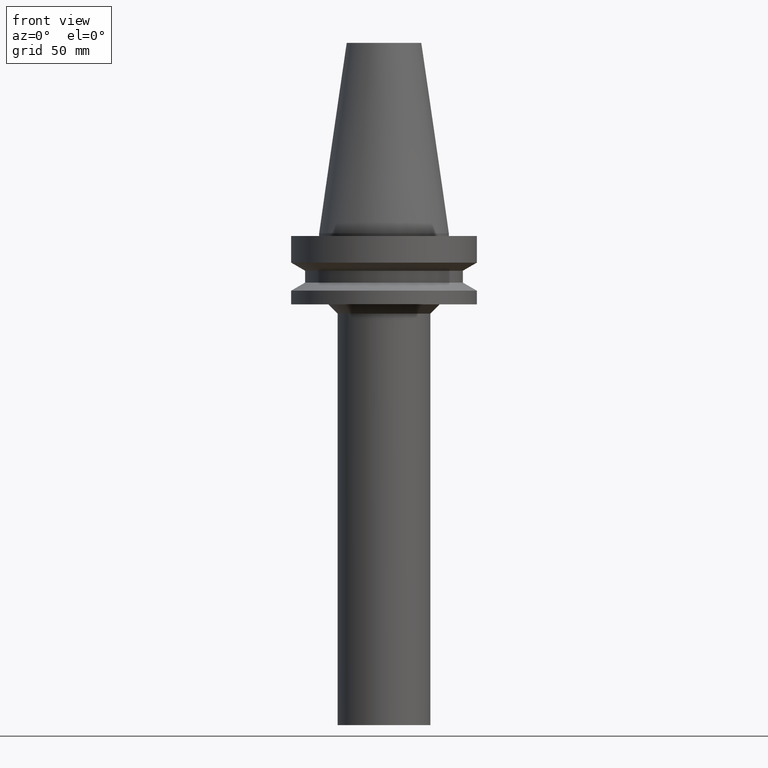
[diagram: clean part render]
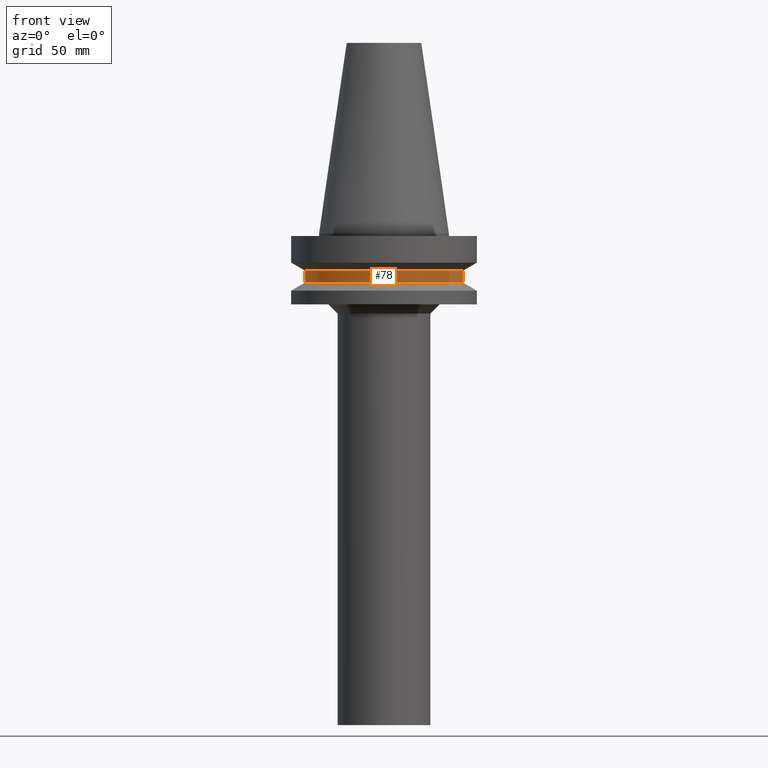
[diagram: same view with one face highlighted and labeled with its STEP entity id]
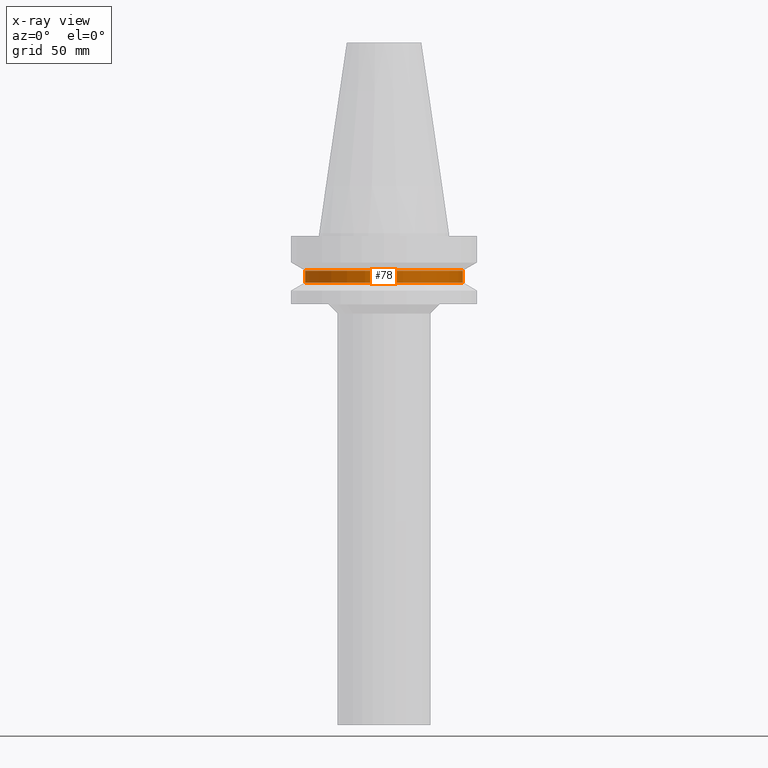
[diagram: x-ray of the same camera — body ghosted, the highlighted face saturated]
A machine part, front view. The second image highlights one B-rep face of the part: STEP entity #78.
The next image is the same camera in x-ray: the body ghosted, the highlighted face saturated — about 0% of this face is hidden behind the body in this view.
In plain terms, the highlighted cylindrical surface (bore or boss wall) has radius 42.5 mm, axis along (-0, -0, 1).
Its self-contained STEP definition (entity closure, byte-faithful):
#78=ADVANCED_FACE('',(#98,#99),#100,.T.);
#98=FACE_BOUND('',#135,.T.);
#99=FACE_BOUND('',#136,.T.);
#100=CYLINDRICAL_SURFACE('',#137,42.5);
#135=EDGE_LOOP('',(#178));
#136=EDGE_LOOP('',(#179));
#137=AXIS2_PLACEMENT_3D('',#180,#181,#182);
#178=ORIENTED_EDGE('',*,*,#230,.F.);
#179=ORIENTED_EDGE('',*,*,#229,.T.);
#180=CARTESIAN_POINT('',(1.42059028701093E-015,2.84118057402186E-015,-23.2));
#181=DIRECTION('',(-6.12323399573677E-017,-1.22464679914735E-016,1.0));
#182=DIRECTION('',(-1.23259516440783E-032,1.0,1.22464679914735E-016));
#229=EDGE_CURVE('',#244,#244,#245,.T.);
#230=EDGE_CURVE('',#246,#246,#247,.T.);
#244=VERTEX_POINT('',#268);
#245=CIRCLE('',#269,42.5);
#246=VERTEX_POINT('',#270);
#247=CIRCLE('',#271,42.5);
#268=CARTESIAN_POINT('',(1.2264915470779E-015,42.5,-20.03012702));
#269=AXIS2_PLACEMENT_3D('',#295,#296,#297);
#270=CARTESIAN_POINT('',(1.61468902694396E-015,42.5,-26.36987298));
#271=AXIS2_PLACEMENT_3D('',#298,#299,#300);
#295=CARTESIAN_POINT('',(1.2264915470779E-015,2.45298309415579E-015,-20.03012702));
#296=DIRECTION('',(6.12323399573677E-017,1.22464679914735E-016,-1.0));
#297=DIRECTION('',(-1.23259516440783E-032,1.0,1.22464679914735E-016));
#298=CARTESIAN_POINT('',(1.61468902694396E-015,3.22937805388793E-015,-26.36987298));
#299=DIRECTION('',(6.12323399573677E-017,1.22464679914735E-016,-1.0));
#300=DIRECTION('',(-1.23259516440783E-032,1.0,1.22464679914735E-016));